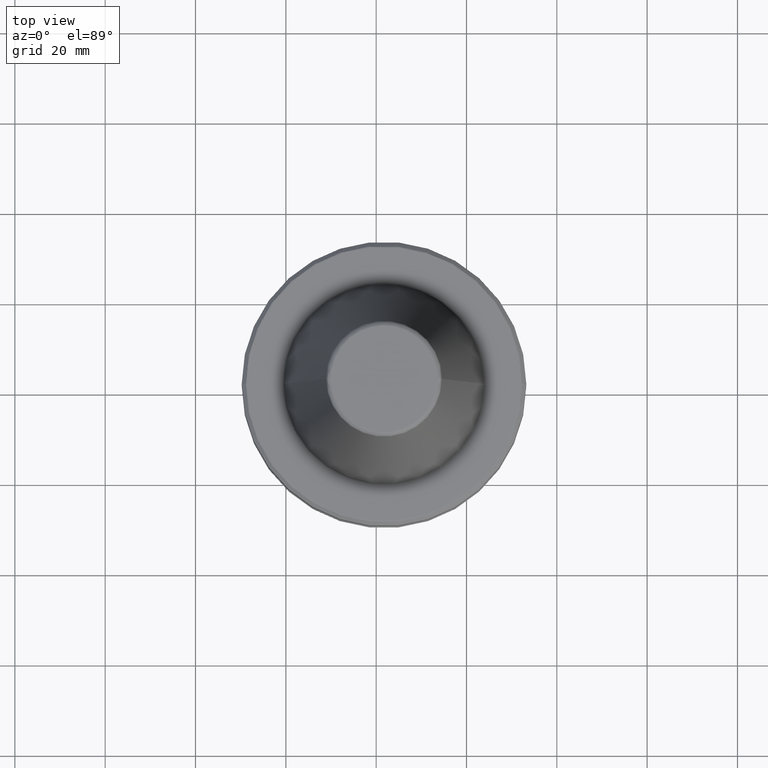
[diagram: clean part render]
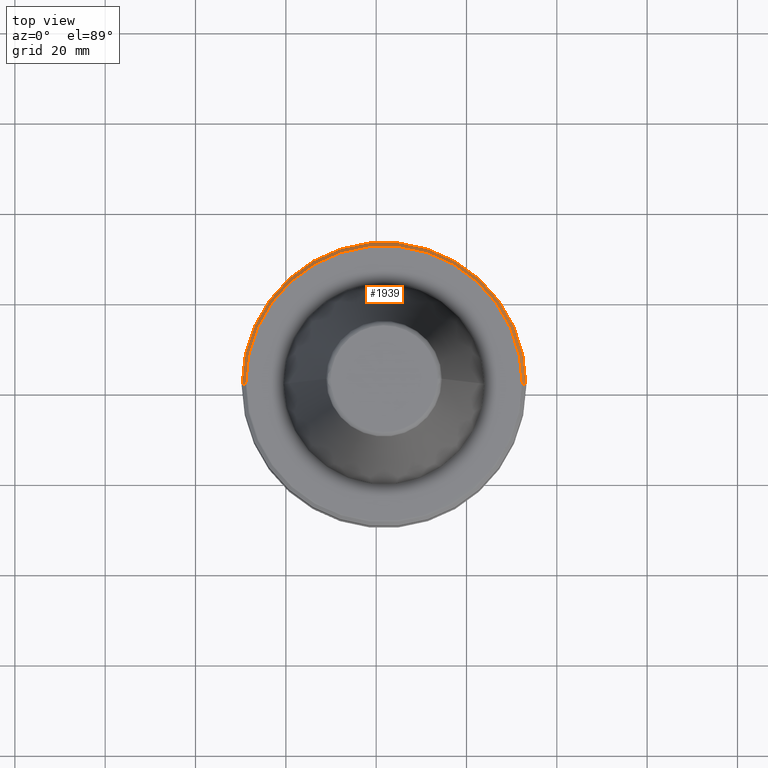
[diagram: same view with one face highlighted and labeled with its STEP entity id]
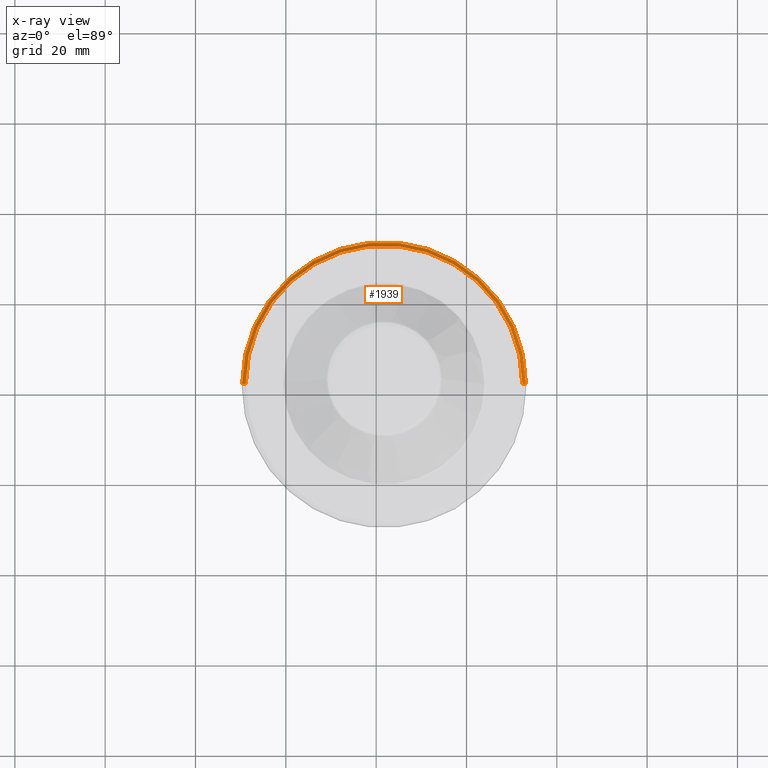
[diagram: x-ray of the same camera — body ghosted, the highlighted face saturated]
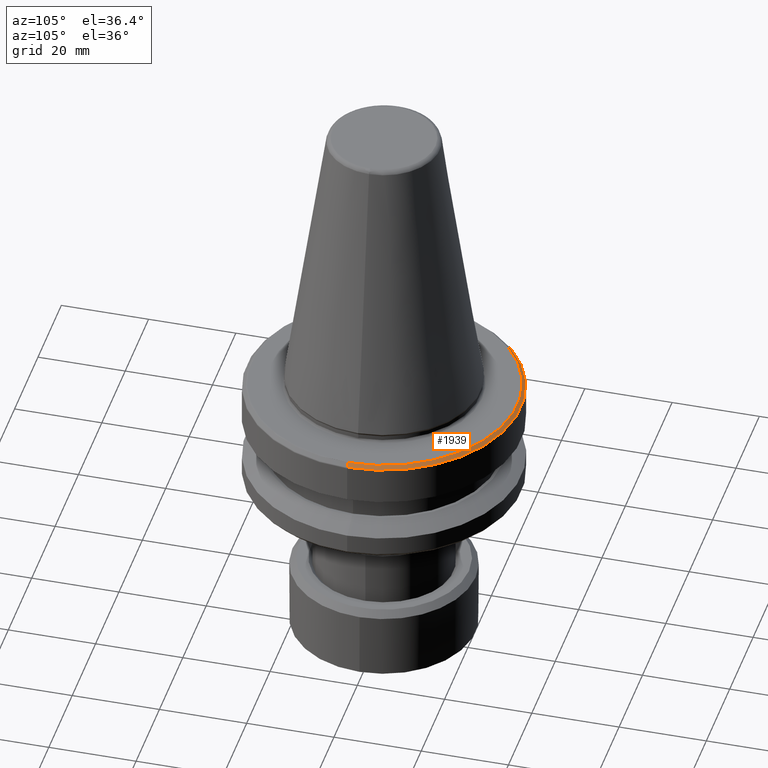
[diagram: same view with one face highlighted and labeled with its STEP entity id]
A machine part, top view. The second image highlights one B-rep face of the part: STEP entity #1939.
The next image is the same camera in x-ray: the body ghosted, the highlighted face saturated — about 0% of this face is hidden behind the body in this view.
A second angle (auxiliary view) of the same face is appended — the face is thin or edge-on in the first view.
In plain terms, the highlighted conical surface has half-angle 45 deg.
Its self-contained STEP definition (entity closure, byte-faithful):
#192 = CIRCLE ( 'NONE', #2029, 31.39249465171115000 ) ;
#198 = CARTESIAN_POINT ( 'NONE',  ( 61.73341380625030400, 81.23534176582239800, 64.96043293316221000 ) ) ;
#218 = VECTOR ( 'NONE', #1279, 1000.000000000000000 ) ;
#256 = CONICAL_SURFACE ( 'NONE', #434, 30.62680461497431500, 0.7853981633974482800 ) ;
#270 = LINE ( 'NONE', #567, #218 ) ;
#281 = FACE_OUTER_BOUND ( 'NONE', #1280, .T. ) ;
#319 = LINE ( 'NONE', #2110, #330 ) ;
#330 = VECTOR ( 'NONE', #655, 1000.000000000000000 ) ;
#434 = AXIS2_PLACEMENT_3D ( 'NONE', #1654, #2036, #798 ) ;
#440 = CIRCLE ( 'NONE', #1737, 30.62680461497431500 ) ;
#567 = CARTESIAN_POINT ( 'NONE',  ( 92.36021842122461600, 81.23534176582239800, 64.96043293316221000 ) ) ;
#614 = CARTESIAN_POINT ( 'NONE',  ( 31.10660919127598900, 81.23534176582239800, 64.96043293316221000 ) ) ;
#655 = DIRECTION ( 'NONE',  ( -0.7071067811865474600, 0.0000000000000000000, -0.7071067811865475700 ) ) ;
#788 = ORIENTED_EDGE ( 'NONE', *, *, #2083, .T. ) ;
#798 = DIRECTION ( 'NONE',  ( -1.000000000000000000, 0.0000000000000000000, 0.0000000000000000000 ) ) ;
#867 = ORIENTED_EDGE ( 'NONE', *, *, #1802, .F. ) ;
#926 = CARTESIAN_POINT ( 'NONE',  ( 93.12590845796145800, 81.23534176582239800, 64.19474289642538200 ) ) ;
#1037 = VERTEX_POINT ( 'NONE', #926 ) ;
#1118 = DIRECTION ( 'NONE',  ( -0.0000000000000000000, -0.0000000000000000000, 1.000000000000000000 ) ) ;
#1279 = DIRECTION ( 'NONE',  ( 0.7071067811865474600, 8.659560562354931600E-017, -0.7071067811865475700 ) ) ;
#1280 = EDGE_LOOP ( 'NONE', ( #2128, #788, #1997, #867 ) ) ;
#1453 = EDGE_CURVE ( 'NONE', #1806, #1642, #440, .T. ) ;
#1458 = VERTEX_POINT ( 'NONE', #2241 ) ;
#1642 = VERTEX_POINT ( 'NONE', #614 ) ;
#1654 = CARTESIAN_POINT ( 'NONE',  ( 61.73341380625030400, 81.23534176582239800, 64.96043293316221000 ) ) ;
#1737 = AXIS2_PLACEMENT_3D ( 'NONE', #198, #1931, #1945 ) ;
#1802 = EDGE_CURVE ( 'NONE', #1642, #1458, #319, .T. ) ;
#1806 = VERTEX_POINT ( 'NONE', #2300 ) ;
#1931 = DIRECTION ( 'NONE',  ( -0.0000000000000000000, -0.0000000000000000000, 1.000000000000000000 ) ) ;
#1939 = ADVANCED_FACE ( 'NONE', ( #281 ), #256, .T. ) ;
#1945 = DIRECTION ( 'NONE',  ( 1.000000000000000000, 0.0000000000000000000, 0.0000000000000000000 ) ) ;
#1997 = ORIENTED_EDGE ( 'NONE', *, *, #2166, .T. ) ;
#2029 = AXIS2_PLACEMENT_3D ( 'NONE', #2280, #1118, #2453 ) ;
#2036 = DIRECTION ( 'NONE',  ( 0.0000000000000000000, 0.0000000000000000000, -1.000000000000000000 ) ) ;
#2083 = EDGE_CURVE ( 'NONE', #1806, #1037, #270, .T. ) ;
#2110 = CARTESIAN_POINT ( 'NONE',  ( 31.10660919127598900, 81.23534176582239800, 64.96043293316221000 ) ) ;
#2128 = ORIENTED_EDGE ( 'NONE', *, *, #1453, .F. ) ;
#2166 = EDGE_CURVE ( 'NONE', #1037, #1458, #192, .T. ) ;
#2241 = CARTESIAN_POINT ( 'NONE',  ( 30.34091915453915400, 81.23534176582239800, 64.19474289642538200 ) ) ;
#2280 = CARTESIAN_POINT ( 'NONE',  ( 61.73341380625030400, 81.23534176582239800, 64.19474289642538200 ) ) ;
#2300 = CARTESIAN_POINT ( 'NONE',  ( 92.36021842122461600, 81.23534176582239800, 64.96043293316221000 ) ) ;
#2453 = DIRECTION ( 'NONE',  ( 1.000000000000000000, 0.0000000000000000000, 0.0000000000000000000 ) ) ;